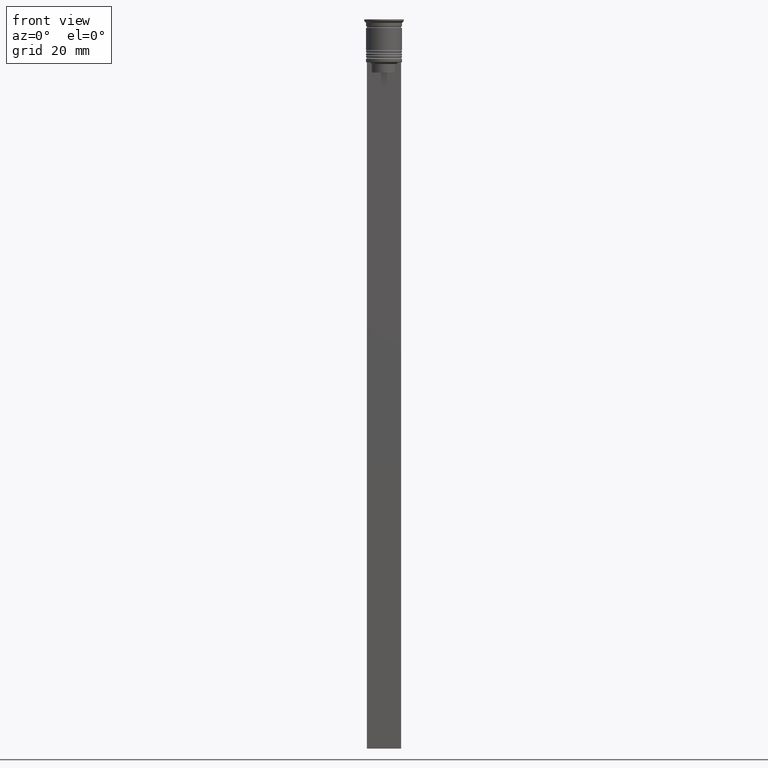
[diagram: clean part render]
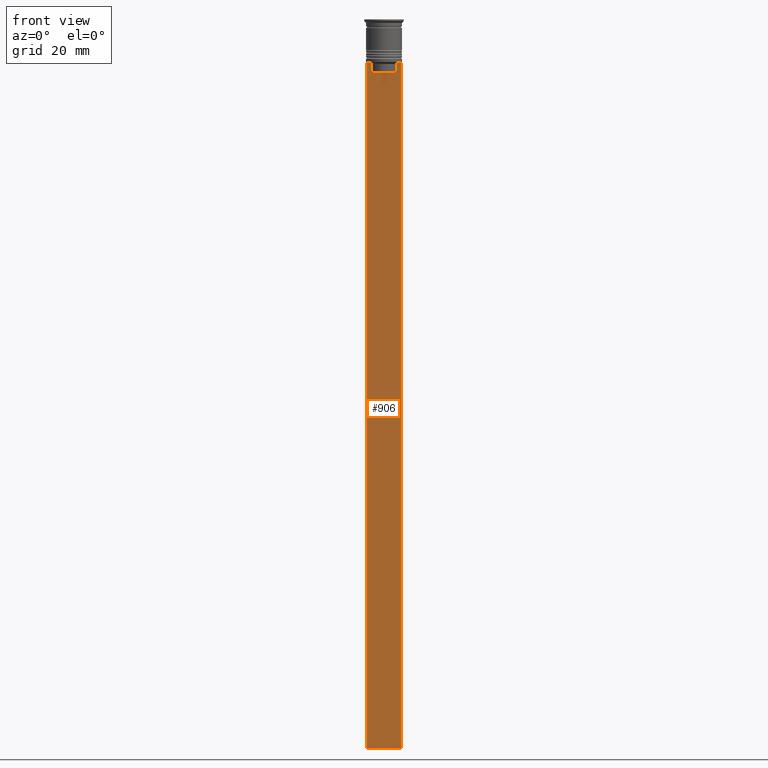
[diagram: same view with one face highlighted and labeled with its STEP entity id]
A machine part, front view. The second image highlights one B-rep face of the part: STEP entity #906.
In plain terms, the highlighted planar face has unit normal (0, -1, -0).
Its self-contained STEP definition (entity closure, byte-faithful):
#50 = VECTOR ( 'NONE', #1590, 1000.000000000000000 ) ;
#63 = EDGE_CURVE ( 'NONE', #1414, #84, #366, .T. ) ;
#84 = VERTEX_POINT ( 'NONE', #335 ) ;
#135 = B_SPLINE_CURVE_WITH_KNOTS ( 'NONE', 3,
 ( #362, #165, #1620, #726 ),
 .UNSPECIFIED., .F., .F.,
 ( 4, 4 ),
 ( 0.007067514914986629433, 0.007777582239375527978 ),
 .UNSPECIFIED. ) ;
#147 = LINE ( 'NONE', #1083, #348 ) ;
#165 = CARTESIAN_POINT ( 'NONE',  ( -3.951794205566887985, -0.5000000000000008882, -12.66675159355373914 ) ) ;
#250 = CARTESIAN_POINT ( 'NONE',  ( -4.999999999999999112, -0.5000000000000008882, -212.5000000000000284 ) ) ;
#284 = VECTOR ( 'NONE', #1665, 1000.000000000000000 ) ;
#308 = ORIENTED_EDGE ( 'NONE', *, *, #1661, .F. ) ;
#310 = EDGE_CURVE ( 'NONE', #84, #1922, #1812, .T. ) ;
#315 = CARTESIAN_POINT ( 'NONE',  ( 5.000000000000000000, -0.5000000000000008882, -2.450124378879110054 ) ) ;
#329 = DIRECTION ( 'NONE',  ( 0.000000000000000000, 0.000000000000000000, -1.000000000000000000 ) ) ;
#335 = CARTESIAN_POINT ( 'NONE',  ( 3.615591237958188042, -0.5000000000000008882, -13.00000000000000178 ) ) ;
#338 = ORIENTED_EDGE ( 'NONE', *, *, #310, .F. ) ;
#343 = CARTESIAN_POINT ( 'NONE',  ( -4.999999999999999112, -0.5000000000000008882, -12.50000000000000000 ) ) ;
#348 = VECTOR ( 'NONE', #1460, 1000.000000000000000 ) ;
#362 = CARTESIAN_POINT ( 'NONE',  ( -4.119769411022908834, -0.5000000000000008882, -12.50000000000000000 ) ) ;
#366 = LINE ( 'NONE', #910, #50 ) ;
#373 = LINE ( 'NONE', #2043, #284 ) ;
#413 = DIRECTION ( 'NONE',  ( 1.000000000000000000, 0.000000000000000000, 0.000000000000000000 ) ) ;
#444 = ORIENTED_EDGE ( 'NONE', *, *, #846, .F. ) ;
#456 = EDGE_CURVE ( 'NONE', #571, #829, #1587, .T. ) ;
#525 = DIRECTION ( 'NONE',  ( 1.000000000000000000, 0.000000000000000000, 0.000000000000000000 ) ) ;
#559 = VERTEX_POINT ( 'NONE', #250 ) ;
#571 = VERTEX_POINT ( 'NONE', #728 ) ;
#594 = CARTESIAN_POINT ( 'NONE',  ( 3.615591237958188486, -0.5000000000000008882, -15.50000000000000000 ) ) ;
#673 = CARTESIAN_POINT ( 'NONE',  ( -3.615591237958188042, -0.5000000000000008882, 0.000000000000000000 ) ) ;
#679 = CARTESIAN_POINT ( 'NONE',  ( 5.000000000000000000, -0.5000000000000008882, -12.50000000000000000 ) ) ;
#703 = FACE_OUTER_BOUND ( 'NONE', #1223, .T. ) ;
#726 = CARTESIAN_POINT ( 'NONE',  ( -3.615591237958188042, -0.5000000000000008882, -13.00000000000000178 ) ) ;
#728 = CARTESIAN_POINT ( 'NONE',  ( -3.615591237958188042, -0.5000000000000008882, -13.00000000000000178 ) ) ;
#778 = CARTESIAN_POINT ( 'NONE',  ( 5.000000000000000000, -0.5000000000000008882, -12.50000000000000000 ) ) ;
#825 = CARTESIAN_POINT ( 'NONE',  ( 4.119769411022908834, -0.5000000000000008882, -12.50000000000000000 ) ) ;
#829 = VERTEX_POINT ( 'NONE', #1238 ) ;
#846 = EDGE_CURVE ( 'NONE', #1922, #2250, #2304, .T. ) ;
#854 = CARTESIAN_POINT ( 'NONE',  ( 3.615591237958188042, -0.5000000000000008882, -13.00000000000000178 ) ) ;
#862 = EDGE_CURVE ( 'NONE', #2038, #559, #1583, .T. ) ;
#872 = DIRECTION ( 'NONE',  ( -1.000000000000000000, 0.000000000000000000, 0.000000000000000000 ) ) ;
#906 = ADVANCED_FACE ( 'NONE', ( #703 ), #1430, .T. ) ;
#910 = CARTESIAN_POINT ( 'NONE',  ( 3.615591237958188042, -0.5000000000000008882, 0.000000000000000000 ) ) ;
#987 = EDGE_CURVE ( 'NONE', #1638, #559, #1664, .T. ) ;
#1080 = DIRECTION ( 'NONE',  ( 0.000000000000000000, 0.000000000000000000, -1.000000000000000000 ) ) ;
#1083 = CARTESIAN_POINT ( 'NONE',  ( 0.000000000000000000, -0.5000000000000008882, -15.50000000000000000 ) ) ;
#1213 = CARTESIAN_POINT ( 'NONE',  ( 5.000000000000000000, -0.5000000000000008882, -212.5000000000000284 ) ) ;
#1223 = EDGE_LOOP ( 'NONE', ( #1719, #1811, #1820, #2101, #1391, #444, #338, #2059, #308, #2194 ) ) ;
#1238 = CARTESIAN_POINT ( 'NONE',  ( -3.615591237958188486, -0.5000000000000008882, -15.50000000000000000 ) ) ;
#1346 = EDGE_CURVE ( 'NONE', #1638, #1569, #1481, .T. ) ;
#1361 = CARTESIAN_POINT ( 'NONE',  ( 3.951794168112528816, -0.5000000000000008882, -12.66675163073525745 ) ) ;
#1391 = ORIENTED_EDGE ( 'NONE', *, *, #2283, .F. ) ;
#1414 = VERTEX_POINT ( 'NONE', #594 ) ;
#1430 = PLANE ( 'NONE',  #2106 ) ;
#1439 = CARTESIAN_POINT ( 'NONE',  ( 5.000000000000000000, -0.5000000000000008882, -212.5000000000000284 ) ) ;
#1460 = DIRECTION ( 'NONE',  ( 1.000000000000000000, 0.000000000000000000, 0.000000000000000000 ) ) ;
#1481 = LINE ( 'NONE', #778, #2203 ) ;
#1489 = CARTESIAN_POINT ( 'NONE',  ( -4.999999999999999112, -0.5000000000000008882, -2.450124378879110054 ) ) ;
#1490 = CARTESIAN_POINT ( 'NONE',  ( 5.000000000000000000, -0.5000000000000008882, -12.50000000000000000 ) ) ;
#1495 = VECTOR ( 'NONE', #872, 1000.000000000000000 ) ;
#1531 = VECTOR ( 'NONE', #525, 1000.000000000000000 ) ;
#1569 = VERTEX_POINT ( 'NONE', #2082 ) ;
#1583 = LINE ( 'NONE', #1439, #1495 ) ;
#1587 = LINE ( 'NONE', #673, #2172 ) ;
#1590 = DIRECTION ( 'NONE',  ( -0.000000000000000000, -0.000000000000000000, 1.000000000000000000 ) ) ;
#1613 = DIRECTION ( 'NONE',  ( 0.000000000000000000, 0.000000000000000000, -1.000000000000000000 ) ) ;
#1620 = CARTESIAN_POINT ( 'NONE',  ( -3.783746449387932476, -0.5000000000000008882, -12.83342999751715752 ) ) ;
#1638 = VERTEX_POINT ( 'NONE', #343 ) ;
#1661 = EDGE_CURVE ( 'NONE', #829, #1414, #147, .T. ) ;
#1664 = LINE ( 'NONE', #1489, #2288 ) ;
#1665 = DIRECTION ( 'NONE',  ( 0.000000000000000000, 0.000000000000000000, -1.000000000000000000 ) ) ;
#1719 = ORIENTED_EDGE ( 'NONE', *, *, #2124, .F. ) ;
#1811 = ORIENTED_EDGE ( 'NONE', *, *, #1346, .F. ) ;
#1812 = B_SPLINE_CURVE_WITH_KNOTS ( 'NONE', 3,
 ( #854, #2251, #1361, #825 ),
 .UNSPECIFIED., .F., .F.,
 ( 4, 4 ),
 ( 0.01745179617248909451, 0.01816207215777257411 ),
 .UNSPECIFIED. ) ;
#1820 = ORIENTED_EDGE ( 'NONE', *, *, #987, .T. ) ;
#1922 = VERTEX_POINT ( 'NONE', #2296 ) ;
#2038 = VERTEX_POINT ( 'NONE', #1213 ) ;
#2043 = CARTESIAN_POINT ( 'NONE',  ( 5.000000000000000000, -0.5000000000000008882, -2.450124378879110054 ) ) ;
#2059 = ORIENTED_EDGE ( 'NONE', *, *, #63, .F. ) ;
#2082 = CARTESIAN_POINT ( 'NONE',  ( -4.119769411022908834, -0.5000000000000008882, -12.50000000000000000 ) ) ;
#2101 = ORIENTED_EDGE ( 'NONE', *, *, #862, .F. ) ;
#2106 = AXIS2_PLACEMENT_3D ( 'NONE', #315, #2295, #329 ) ;
#2124 = EDGE_CURVE ( 'NONE', #1569, #571, #135, .T. ) ;
#2172 = VECTOR ( 'NONE', #1613, 1000.000000000000000 ) ;
#2194 = ORIENTED_EDGE ( 'NONE', *, *, #456, .F. ) ;
#2203 = VECTOR ( 'NONE', #413, 1000.000000000000000 ) ;
#2250 = VERTEX_POINT ( 'NONE', #1490 ) ;
#2251 = CARTESIAN_POINT ( 'NONE',  ( 3.783746406711540278, -0.5000000000000008882, -12.83343003979123509 ) ) ;
#2283 = EDGE_CURVE ( 'NONE', #2250, #2038, #373, .T. ) ;
#2288 = VECTOR ( 'NONE', #1080, 1000.000000000000000 ) ;
#2295 = DIRECTION ( 'NONE',  ( 0.000000000000000000, -1.000000000000000000, -0.000000000000000000 ) ) ;
#2296 = CARTESIAN_POINT ( 'NONE',  ( 4.119769411022908834, -0.5000000000000008882, -12.50000000000000000 ) ) ;
#2304 = LINE ( 'NONE', #679, #1531 ) ;